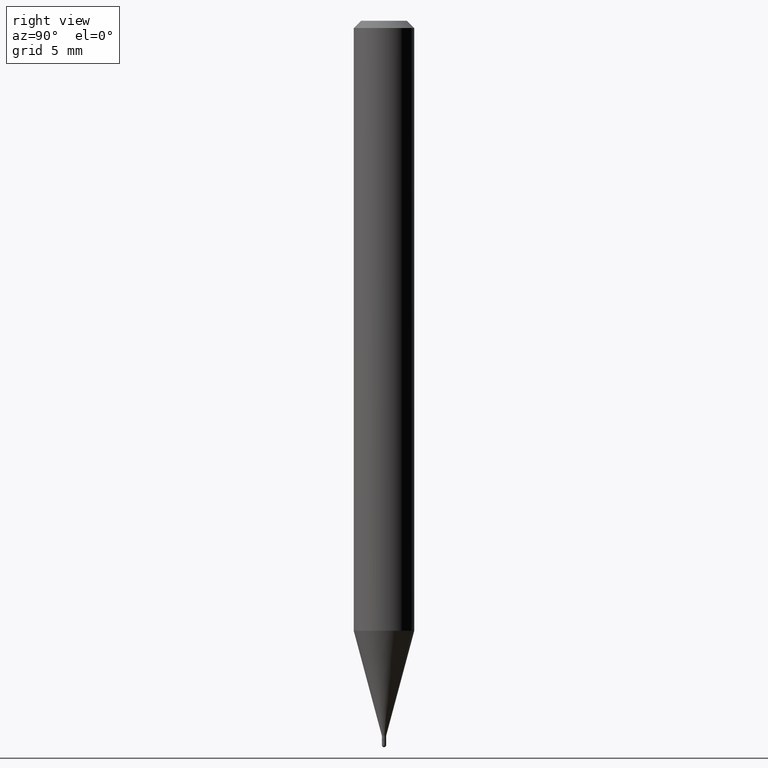
[diagram: clean part render]
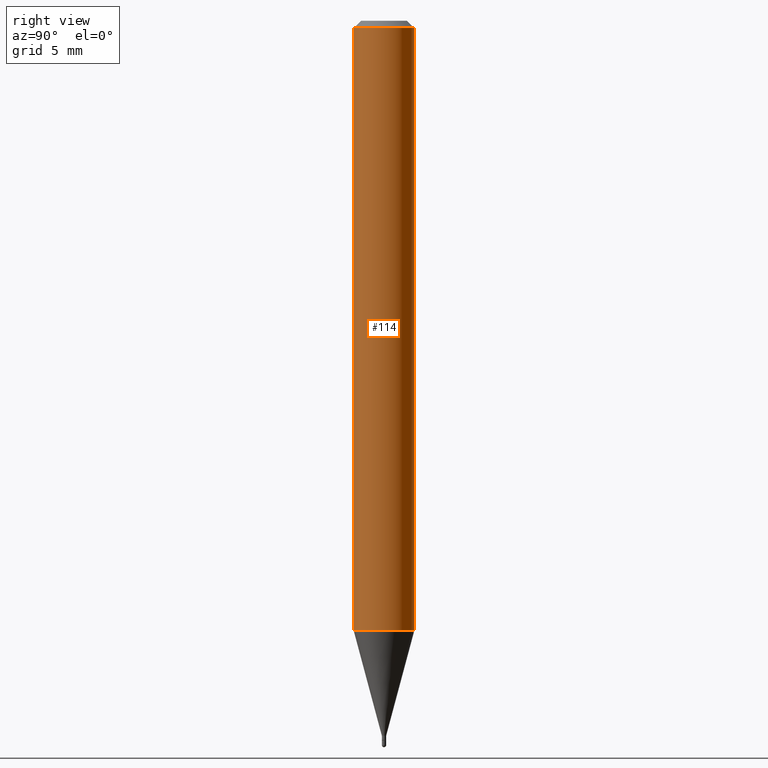
[diagram: same view with one face highlighted and labeled with its STEP entity id]
A machine part, right view. The second image highlights one B-rep face of the part: STEP entity #114.
In plain terms, the highlighted cylindrical surface (edge-blend (fillet) strip) has radius 1.5875 mm, axis along (-0, 0, 1).
Its self-contained STEP definition (entity closure, byte-faithful):
#19 = CARTESIAN_POINT ( 'NONE',  ( -4.364351673553608052E-16, -0.06250000000000439926, -1.259541053161005397 ) ) ;
#20 = ORIENTED_EDGE ( 'NONE', *, *, #70, .F. ) ;
#21 = DIRECTION ( 'NONE',  ( -2.445480569901482544E-29, 3.491464492531789239E-15, 1.000000000000000000 ) ) ;
#23 = VERTEX_POINT ( 'NONE', #504 ) ;
#41 = EDGE_CURVE ( 'NONE', #23, #254, #153, .T. ) ;
#44 = CARTESIAN_POINT ( 'NONE',  ( 4.440892098500935790E-16, 0.06249999999999995143, -0.01499999999999997863 ) ) ;
#65 = CARTESIAN_POINT ( 'NONE',  ( 3.668220854852165434E-31, -5.237196738797599944E-17, -0.01499999999999976179 ) ) ;
#70 = EDGE_CURVE ( 'NONE', #376, #106, #424, .T. ) ;
#106 = VERTEX_POINT ( 'NONE', #486 ) ;
#114 = ADVANCED_FACE ( 'NONE', ( #321 ), #327, .T. ) ;
#118 = CARTESIAN_POINT ( 'NONE',  ( 4.440892098500625669E-16, 0.06250000000000000000, -2.182165307832368028E-16 ) ) ;
#131 = ORIENTED_EDGE ( 'NONE', *, *, #438, .T. ) ;
#153 = LINE ( 'NONE', #118, #369 ) ;
#171 = EDGE_LOOP ( 'NONE', ( #131, #408, #334, #20 ) ) ;
#182 = DIRECTION ( 'NONE',  ( -6.982962677686265922E-15, -1.000000000000000000, 3.483106191921935554E-15 ) ) ;
#192 = CARTESIAN_POINT ( 'NONE',  ( -4.364351673553916201E-16, -0.06250000000000000000, 2.182165307832368028E-16 ) ) ;
#193 = DIRECTION ( 'NONE',  ( -2.445480569901482544E-29, 3.491464492531789634E-15, 1.000000000000000000 ) ) ;
#218 = DIRECTION ( 'NONE',  ( -2.445480569901482544E-29, 3.491464492531789239E-15, 1.000000000000000000 ) ) ;
#220 = AXIS2_PLACEMENT_3D ( 'NONE', #65, #218, #182 ) ;
#239 = CARTESIAN_POINT ( 'NONE',  ( 0.000000000000000000, 0.000000000000000000, 0.000000000000000000 ) ) ;
#254 = VERTEX_POINT ( 'NONE', #44 ) ;
#264 = DIRECTION ( 'NONE',  ( -2.445480569901482544E-29, 3.491464492531789634E-15, 1.000000000000000000 ) ) ;
#269 = AXIS2_PLACEMENT_3D ( 'NONE', #414, #21, #339 ) ;
#298 = EDGE_CURVE ( 'NONE', #106, #254, #508, .T. ) ;
#321 = FACE_OUTER_BOUND ( 'NONE', #171, .T. ) ;
#327 = CYLINDRICAL_SURFACE ( 'NONE', #349, 0.06250000000000000000 ) ;
#334 = ORIENTED_EDGE ( 'NONE', *, *, #298, .F. ) ;
#339 = DIRECTION ( 'NONE',  ( -6.982962677686265922E-15, -1.000000000000000000, 4.370956789862821150E-15 ) ) ;
#349 = AXIS2_PLACEMENT_3D ( 'NONE', #239, #476, #484 ) ;
#369 = VECTOR ( 'NONE', #264, 39.37007874015748143 ) ;
#376 = VERTEX_POINT ( 'NONE', #19 ) ;
#408 = ORIENTED_EDGE ( 'NONE', *, *, #41, .T. ) ;
#414 = CARTESIAN_POINT ( 'NONE',  ( 3.080183172498490090E-29, -4.397642863997746383E-15, -1.259541053161005841 ) ) ;
#424 = LINE ( 'NONE', #192, #507 ) ;
#438 = EDGE_CURVE ( 'NONE', #376, #23, #489, .T. ) ;
#476 = DIRECTION ( 'NONE',  ( -2.445480569901482544E-29, 3.491464492531789239E-15, 1.000000000000000000 ) ) ;
#484 = DIRECTION ( 'NONE',  ( -6.982962677686265922E-15, -1.000000000000000000, 3.491464492531788845E-15 ) ) ;
#486 = CARTESIAN_POINT ( 'NONE',  ( -4.364351673553912750E-16, -0.06250000000000005551, -0.01499999999999954321 ) ) ;
#489 = CIRCLE ( 'NONE', #269, 0.06250000000000000000 ) ;
#504 = CARTESIAN_POINT ( 'NONE',  ( 4.440892098500933817E-16, 0.06249999999999561462, -1.259541053161006063 ) ) ;
#507 = VECTOR ( 'NONE', #193, 39.37007874015748143 ) ;
#508 = CIRCLE ( 'NONE', #220, 0.06250000000000000000 ) ;